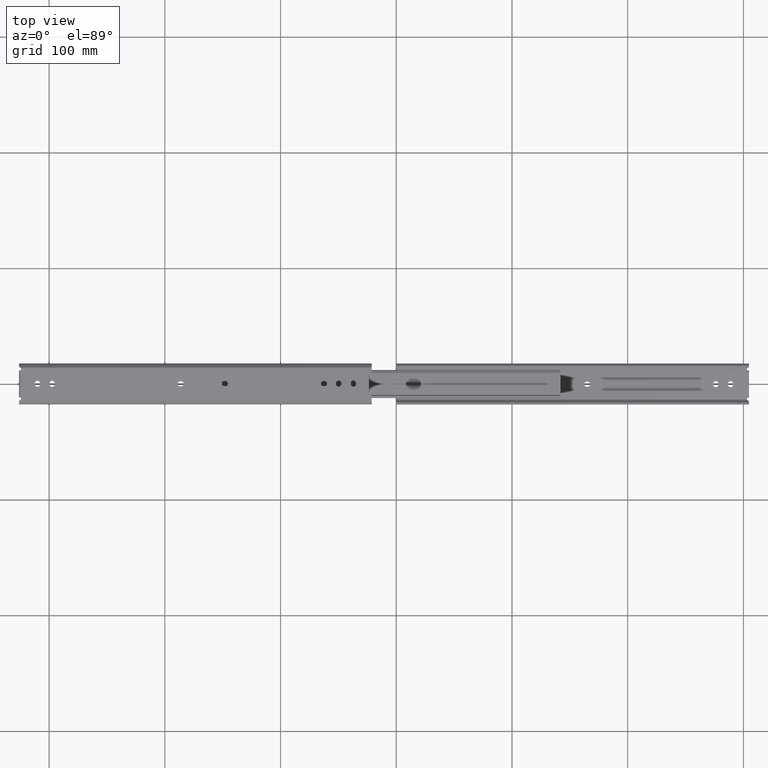
[diagram: clean part render]
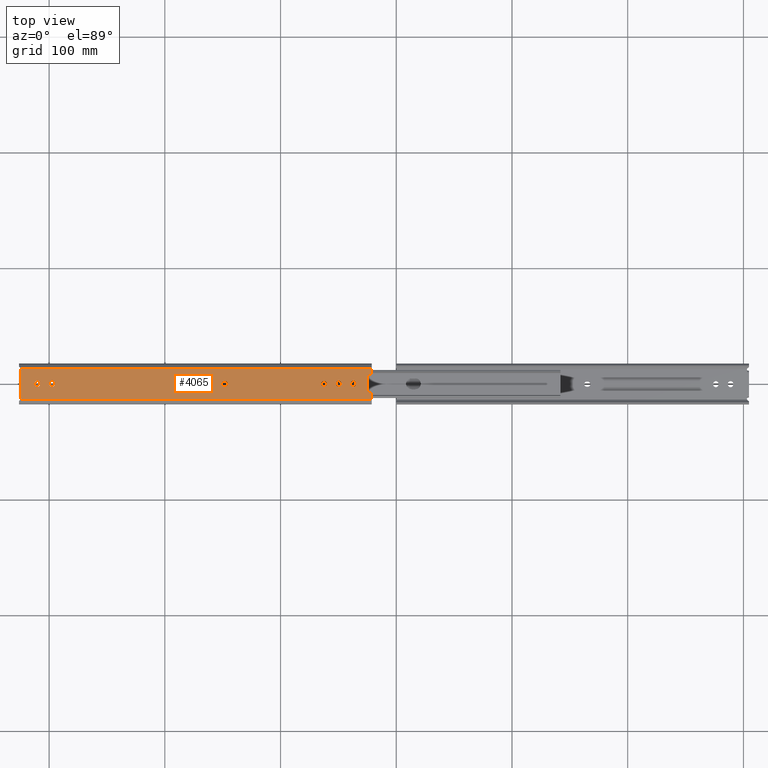
[diagram: same view with one face highlighted and labeled with its STEP entity id]
A machine part, top view. The second image highlights one B-rep face of the part: STEP entity #4065.
In plain terms, the highlighted planar face has unit normal (0, 0, -1).
Its self-contained STEP definition (entity closure, byte-faithful):
#6 = AXIS2_PLACEMENT_3D ( 'NONE', #3156, #1023, #3507 ) ;
#21 = CARTESIAN_POINT ( 'NONE',  ( 40.89999999999999100, -2.250000000000001800, -4.792173602385929600E-014 ) ) ;
#22 = ORIENTED_EDGE ( 'NONE', *, *, #2494, .F. ) ;
#27 = ORIENTED_EDGE ( 'NONE', *, *, #1081, .T. ) ;
#46 = CARTESIAN_POINT ( 'NONE',  ( 304.3000000000008100, -12.79999999999970100, 7.958043946043602500E-014 ) ) ;
#56 = CARTESIAN_POINT ( 'NONE',  ( 278.4500000000000500, 0.4000000000000100100, -4.792173602385929600E-014 ) ) ;
#61 = CARTESIAN_POINT ( 'NONE',  ( 13.64999999999999500, -0.3999999999999964700, -2.397426826350011800E-015 ) ) ;
#71 = AXIS2_PLACEMENT_3D ( 'NONE', #1252, #3738, #1600 ) ;
#81 = DIRECTION ( 'NONE',  ( 0.0000000000000000000, 0.0000000000000000000, 1.000000000000000000 ) ) ;
#85 = ORIENTED_EDGE ( 'NONE', *, *, #3411, .T. ) ;
#104 = DIRECTION ( 'NONE',  ( 1.000000000000000000, 0.0000000000000000000, 0.0000000000000000000 ) ) ;
#125 = CARTESIAN_POINT ( 'NONE',  ( 276.2000000000000500, -0.3999999999999308000, -4.792173602385929600E-014 ) ) ;
#133 = CARTESIAN_POINT ( 'NONE',  ( 13.65000000000000000, 0.3999999999999968000, -4.792173602385929600E-014 ) ) ;
#162 = LINE ( 'NONE', #778, #3824 ) ;
#170 = DIRECTION ( 'NONE',  ( -0.0000000000000000000, 1.000000000000000000, -0.0000000000000000000 ) ) ;
#179 = EDGE_CURVE ( 'NONE', #2502, #4097, #2085, .T. ) ;
#209 = EDGE_CURVE ( 'NONE', #951, #460, #3061, .T. ) ;
#256 = CARTESIAN_POINT ( 'NONE',  ( 303.2000000000000500, -12.10717967697330100, 7.958043946043602500E-014 ) ) ;
#262 = DIRECTION ( 'NONE',  ( 1.000000000000000000, 0.0000000000000000000, 0.0000000000000000000 ) ) ;
#285 = DIRECTION ( 'NONE',  ( 0.0000000000000000000, 0.0000000000000000000, 1.000000000000000000 ) ) ;
#332 = DIRECTION ( 'NONE',  ( 0.0000000000000000000, 0.0000000000000000000, 1.000000000000000000 ) ) ;
#342 = CARTESIAN_POINT ( 'NONE',  ( 291.1500000000000900, 0.4000000000000670800, -4.792173602385929600E-014 ) ) ;
#401 = DIRECTION ( 'NONE',  ( 1.000000000000000000, 0.0000000000000000000, 0.0000000000000000000 ) ) ;
#421 = ORIENTED_EDGE ( 'NONE', *, *, #3420, .T. ) ;
#422 = EDGE_CURVE ( 'NONE', #3955, #4448, #4558, .T. ) ;
#428 = VERTEX_POINT ( 'NONE', #4373 ) ;
#431 = VERTEX_POINT ( 'NONE', #1848 ) ;
#460 = VERTEX_POINT ( 'NONE', #133 ) ;
#463 = CARTESIAN_POINT ( 'NONE',  ( 28.60000000000000100, -0.3999999999999991300, -4.792173602385929600E-014 ) ) ;
#480 = DIRECTION ( 'NONE',  ( 1.000000000000000000, 0.0000000000000000000, 0.0000000000000000000 ) ) ;
#485 = CARTESIAN_POINT ( 'NONE',  ( 0.0000000000000000000, -13.34999999999964600, 8.001412032943022700E-014 ) ) ;
#487 = VECTOR ( 'NONE', #858, 1000.000000000000000 ) ;
#488 = LINE ( 'NONE', #1986, #1316 ) ;
#489 = ORIENTED_EDGE ( 'NONE', *, *, #772, .T. ) ;
#495 = ORIENTED_EDGE ( 'NONE', *, *, #2932, .T. ) ;
#496 = VERTEX_POINT ( 'NONE', #2260 ) ;
#513 = FACE_BOUND ( 'NONE', #2574, .T. ) ;
#529 = EDGE_CURVE ( 'NONE', #2888, #2940, #4117, .T. ) ;
#597 = VECTOR ( 'NONE', #2379, 1000.000000000000000 ) ;
#625 = CARTESIAN_POINT ( 'NONE',  ( 273.9500000000000500, 0.4000000000000634200, -4.792173602385929600E-014 ) ) ;
#629 = CARTESIAN_POINT ( 'NONE',  ( 304.8000000000000100, 0.0000000000000000000, 0.0000000000000000000 ) ) ;
#633 = LINE ( 'NONE', #1126, #2401 ) ;
#666 = CARTESIAN_POINT ( 'NONE',  ( 164.6999999999999600, 2.249999999999973800, -4.792173602385929600E-014 ) ) ;
#670 = AXIS2_PLACEMENT_3D ( 'NONE', #1278, #913, #3042 ) ;
#671 = CARTESIAN_POINT ( 'NONE',  ( 303.1220781010617300, -13.34999999999963900, 7.958043946043602500E-014 ) ) ;
#706 = VERTEX_POINT ( 'NONE', #3524 ) ;
#711 = VERTEX_POINT ( 'NONE', #2794 ) ;
#715 = ORIENTED_EDGE ( 'NONE', *, *, #1831, .T. ) ;
#751 = VERTEX_POINT ( 'NONE', #4578 ) ;
#772 = EDGE_CURVE ( 'NONE', #2039, #3564, #3937, .T. ) ;
#778 = CARTESIAN_POINT ( 'NONE',  ( 13.65000000000000000, 0.3999999999999968000, -4.792173602385929600E-014 ) ) ;
#795 = VECTOR ( 'NONE', #2091, 1000.000000000000000 ) ;
#808 = DIRECTION ( 'NONE',  ( 0.0000000000000000000, 0.0000000000000000000, 1.000000000000000000 ) ) ;
#809 = DIRECTION ( 'NONE',  ( 1.000000000000000000, 0.0000000000000000000, 0.0000000000000000000 ) ) ;
#822 = VERTEX_POINT ( 'NONE', #1395 ) ;
#829 = DIRECTION ( 'NONE',  ( 0.0000000000000000000, -1.000000000000000000, 0.0000000000000000000 ) ) ;
#835 = EDGE_LOOP ( 'NONE', ( #495, #2319, #894, #4300 ) ) ;
#854 = AXIS2_PLACEMENT_3D ( 'NONE', #2188, #81, #2538 ) ;
#858 = DIRECTION ( 'NONE',  ( 0.0000000000000000000, -1.000000000000000000, 0.0000000000000000000 ) ) ;
#869 = VERTEX_POINT ( 'NONE', #4018 ) ;
#884 = CARTESIAN_POINT ( 'NONE',  ( 28.59999999999999800, 0.4000000000000038000, -4.792173602385929600E-014 ) ) ;
#894 = ORIENTED_EDGE ( 'NONE', *, *, #4438, .T. ) ;
#911 = VERTEX_POINT ( 'NONE', #1945 ) ;
#913 = DIRECTION ( 'NONE',  ( 0.0000000000000000000, 0.0000000000000000000, 1.000000000000000000 ) ) ;
#914 = ORIENTED_EDGE ( 'NONE', *, *, #2055, .T. ) ;
#933 = VECTOR ( 'NONE', #942, 1000.000000000000000 ) ;
#939 = CARTESIAN_POINT ( 'NONE',  ( 164.6999999999999600, 2.249999999999973800, -4.792173602385929600E-014 ) ) ;
#942 = DIRECTION ( 'NONE',  ( 0.0000000000000000000, -1.000000000000000000, 0.0000000000000000000 ) ) ;
#943 = DIRECTION ( 'NONE',  ( -1.000000000000000000, -0.0000000000000000000, -0.0000000000000000000 ) ) ;
#951 = VERTEX_POINT ( 'NONE', #2911 ) ;
#955 = DIRECTION ( 'NONE',  ( 0.0000000000000000000, 0.0000000000000000000, 1.000000000000000000 ) ) ;
#976 = CIRCLE ( 'NONE', #4504, 2.249999999999974200 ) ;
#981 = AXIS2_PLACEMENT_3D ( 'NONE', #3644, #2903, #1154 ) ;
#984 = VECTOR ( 'NONE', #3889, 1000.000000000000000 ) ;
#990 = EDGE_CURVE ( 'NONE', #1131, #4157, #1857, .T. ) ;
#999 = ORIENTED_EDGE ( 'NONE', *, *, #529, .T. ) ;
#1016 = CARTESIAN_POINT ( 'NONE',  ( 0.0000000000000000000, 0.0000000000000000000, 0.0000000000000000000 ) ) ;
#1023 = DIRECTION ( 'NONE',  ( 0.0000000000000000000, 0.0000000000000000000, 1.000000000000000000 ) ) ;
#1025 = EDGE_CURVE ( 'NONE', #2502, #751, #1327, .T. ) ;
#1034 = VECTOR ( 'NONE', #2233, 1000.000000000000000 ) ;
#1077 = ORIENTED_EDGE ( 'NONE', *, *, #4342, .T. ) ;
#1081 = EDGE_CURVE ( 'NONE', #4327, #1131, #1215, .T. ) ;
#1089 = CARTESIAN_POINT ( 'NONE',  ( 40.89999999999999100, -2.250000000000001800, -4.792173602385929600E-014 ) ) ;
#1090 = LINE ( 'NONE', #4121, #3819 ) ;
#1111 = DIRECTION ( 'NONE',  ( 0.0000000000000000000, 0.0000000000000000000, 1.000000000000000000 ) ) ;
#1126 = CARTESIAN_POINT ( 'NONE',  ( 3.799999999999999400, 8.000000000000000000, 7.958043946043602500E-014 ) ) ;
#1131 = VERTEX_POINT ( 'NONE', #4069 ) ;
#1147 = CIRCLE ( 'NONE', #4564, 2.250000000000029800 ) ;
#1154 = DIRECTION ( 'NONE',  ( 1.000000000000000000, 0.0000000000000000000, 0.0000000000000000000 ) ) ;
#1164 = VECTOR ( 'NONE', #1274, 1000.000000000000000 ) ;
#1203 = CARTESIAN_POINT ( 'NONE',  ( 278.4500000000000500, -0.3999999999999296300, -4.792173602385929600E-014 ) ) ;
#1208 = CIRCLE ( 'NONE', #2012, 2.250000000000001800 ) ;
#1215 = CIRCLE ( 'NONE', #2090, 2.249999999999998700 ) ;
#1220 = CARTESIAN_POINT ( 'NONE',  ( 18.15000000000000600, 0.3999999999999995800, -4.792173602385929600E-014 ) ) ;
#1244 = LINE ( 'NONE', #939, #1619 ) ;
#1252 = CARTESIAN_POINT ( 'NONE',  ( 276.1999999999999900, 0.4000000000000097400, -4.792173602385929600E-014 ) ) ;
#1270 = VECTOR ( 'NONE', #2907, 1000.000000000000000 ) ;
#1274 = DIRECTION ( 'NONE',  ( -1.000000000000000000, -0.0000000000000000000, -0.0000000000000000000 ) ) ;
#1278 = CARTESIAN_POINT ( 'NONE',  ( 304.3000000000008100, 12.79999999999970100, 7.958043946043602500E-014 ) ) ;
#1299 = DIRECTION ( 'NONE',  ( -1.000000000000000000, -0.0000000000000000000, -0.0000000000000000000 ) ) ;
#1316 = VECTOR ( 'NONE', #4145, 1000.000000000000000 ) ;
#1327 = CIRCLE ( 'NONE', #670, 1.300000000000023400 ) ;
#1334 = VERTEX_POINT ( 'NONE', #4056 ) ;
#1344 = AXIS2_PLACEMENT_3D ( 'NONE', #4527, #2374, #262 ) ;
#1355 = DIRECTION ( 'NONE',  ( 0.0000000000000000000, -1.000000000000000000, -5.993567065875082400E-015 ) ) ;
#1364 = ORIENTED_EDGE ( 'NONE', *, *, #1650, .T. ) ;
#1389 = ORIENTED_EDGE ( 'NONE', *, *, #1559, .T. ) ;
#1395 = CARTESIAN_POINT ( 'NONE',  ( 129.6500000000000100, 1.230082464744604100E-014, -4.792173602385929600E-014 ) ) ;
#1402 = EDGE_CURVE ( 'NONE', #4448, #1334, #4399, .T. ) ;
#1403 = EDGE_CURVE ( 'NONE', #869, #4327, #4501, .T. ) ;
#1407 = ORIENTED_EDGE ( 'NONE', *, *, #3421, .T. ) ;
#1413 = LINE ( 'NONE', #56, #3093 ) ;
#1435 = CARTESIAN_POINT ( 'NONE',  ( 286.6500000000000900, 0.4000000000000085700, -4.792173602385929600E-014 ) ) ;
#1450 = FACE_BOUND ( 'NONE', #4567, .T. ) ;
#1464 = CIRCLE ( 'NONE', #3191, 2.250000000000001800 ) ;
#1478 = ORIENTED_EDGE ( 'NONE', *, *, #990, .T. ) ;
#1487 = ORIENTED_EDGE ( 'NONE', *, *, #2336, .T. ) ;
#1502 = CARTESIAN_POINT ( 'NONE',  ( 0.0000000000000000000, 8.000000000000000000, 7.958043946043602500E-014 ) ) ;
#1509 = EDGE_CURVE ( 'NONE', #460, #3349, #162, .T. ) ;
#1523 = CARTESIAN_POINT ( 'NONE',  ( 41.70000000000000300, 3.337652803933819400E-015, -4.792173602385929600E-014 ) ) ;
#1529 = VECTOR ( 'NONE', #4572, 1000.000000000000000 ) ;
#1542 = ORIENTED_EDGE ( 'NONE', *, *, #2994, .T. ) ;
#1559 = EDGE_CURVE ( 'NONE', #1334, #2039, #3712, .T. ) ;
#1564 = FACE_BOUND ( 'NONE', #4296, .T. ) ;
#1568 = CARTESIAN_POINT ( 'NONE',  ( 286.6500000000000900, 0.4000000000000085700, -4.792173602385929600E-014 ) ) ;
#1578 = VERTEX_POINT ( 'NONE', #2860 ) ;
#1585 = ORIENTED_EDGE ( 'NONE', *, *, #3744, .T. ) ;
#1600 = DIRECTION ( 'NONE',  ( 1.000000000000000000, 0.0000000000000000000, 0.0000000000000000000 ) ) ;
#1601 = CARTESIAN_POINT ( 'NONE',  ( 165.5000000000000300, -2.250000000000025800, -1.348552589821909000E-014 ) ) ;
#1602 = AXIS2_PLACEMENT_3D ( 'NONE', #46, #2503, #401 ) ;
#1613 = DIRECTION ( 'NONE',  ( -1.239088197126290800E-016, 1.000000000000000000, 5.993567065875082400E-015 ) ) ;
#1615 = VERTEX_POINT ( 'NONE', #3963 ) ;
#1618 = VECTOR ( 'NONE', #2458, 1000.000000000000000 ) ;
#1619 = VECTOR ( 'NONE', #1299, 1000.000000000000000 ) ;
#1621 = ORIENTED_EDGE ( 'NONE', *, *, #1403, .T. ) ;
#1649 = VERTEX_POINT ( 'NONE', #1502 ) ;
#1650 = EDGE_CURVE ( 'NONE', #751, #4603, #2190, .T. ) ;
#1705 = CARTESIAN_POINT ( 'NONE',  ( 288.9000000000000300, 0.4000000000000668000, -4.792173602385929600E-014 ) ) ;
#1707 = CARTESIAN_POINT ( 'NONE',  ( 167.7500000000000000, 2.594053039760294200E-014, -4.792173602385929600E-014 ) ) ;
#1708 = VERTEX_POINT ( 'NONE', #2941 ) ;
#1718 = EDGE_CURVE ( 'NONE', #4129, #2262, #1147, .T. ) ;
#1723 = VECTOR ( 'NONE', #4265, 1000.000000000000000 ) ;
#1724 = EDGE_CURVE ( 'NONE', #431, #706, #3872, .T. ) ;
#1774 = CIRCLE ( 'NONE', #1344, 2.250000000000001800 ) ;
#1790 = CARTESIAN_POINT ( 'NONE',  ( 286.6500000000000900, -0.4000000000000084000, -2.397426826350083500E-015 ) ) ;
#1831 = EDGE_CURVE ( 'NONE', #4277, #3210, #1856, .T. ) ;
#1834 = CARTESIAN_POINT ( 'NONE',  ( 30.85000000000000100, 0.4000000000000040700, -4.792173602385929600E-014 ) ) ;
#1844 = VERTEX_POINT ( 'NONE', #1601 ) ;
#1848 = CARTESIAN_POINT ( 'NONE',  ( 3.800000000000001600, -8.000000000000000000, 7.958043946043602500E-014 ) ) ;
#1849 = CARTESIAN_POINT ( 'NONE',  ( 126.5999999999999900, -2.250000000000006700, -4.792173602385929600E-014 ) ) ;
#1856 = LINE ( 'NONE', #4089, #4269 ) ;
#1857 = LINE ( 'NONE', #3076, #933 ) ;
#1867 = DIRECTION ( 'NONE',  ( 1.000000000000000000, 0.0000000000000000000, 0.0000000000000000000 ) ) ;
#1873 = CARTESIAN_POINT ( 'NONE',  ( 3.799999999999999400, 8.000000000000000000, 7.958043946043602500E-014 ) ) ;
#1904 = EDGE_CURVE ( 'NONE', #496, #431, #488, .T. ) ;
#1934 = ORIENTED_EDGE ( 'NONE', *, *, #422, .T. ) ;
#1945 = CARTESIAN_POINT ( 'NONE',  ( 291.1500000000000900, 0.4000000000000670800, -4.792173602385929600E-014 ) ) ;
#1949 = EDGE_CURVE ( 'NONE', #3210, #4336, #1208, .T. ) ;
#1964 = ORIENTED_EDGE ( 'NONE', *, *, #4257, .T. ) ;
#1986 = CARTESIAN_POINT ( 'NONE',  ( 1.708415533803517000E-015, -8.000000000000000000, 7.958043946043602500E-014 ) ) ;
#2008 = DIRECTION ( 'NONE',  ( 0.0000000000000000000, 0.0000000000000000000, 1.000000000000000000 ) ) ;
#2012 = AXIS2_PLACEMENT_3D ( 'NONE', #2436, #332, #2801 ) ;
#2037 = AXIS2_PLACEMENT_3D ( 'NONE', #1523, #4027, #1867 ) ;
#2039 = VERTEX_POINT ( 'NONE', #21 ) ;
#2055 = EDGE_CURVE ( 'NONE', #3564, #3955, #3592, .T. ) ;
#2062 = DIRECTION ( 'NONE',  ( 1.000000000000000000, 0.0000000000000000000, 0.0000000000000000000 ) ) ;
#2085 = LINE ( 'NONE', #2310, #1164 ) ;
#2090 = AXIS2_PLACEMENT_3D ( 'NONE', #884, #2280, #4093 ) ;
#2091 = DIRECTION ( 'NONE',  ( -0.0000000000000000000, 1.000000000000000000, -0.0000000000000000000 ) ) ;
#2101 = EDGE_CURVE ( 'NONE', #711, #1578, #633, .T. ) ;
#2161 = CARTESIAN_POINT ( 'NONE',  ( 18.15000000000000600, -0.3999999999999995800, -4.792173602385929600E-014 ) ) ;
#2188 = CARTESIAN_POINT ( 'NONE',  ( 15.90000000000000000, -0.3999999999999997400, -4.792173602385929600E-014 ) ) ;
#2190 = LINE ( 'NONE', #3632, #1270 ) ;
#2194 = AXIS2_PLACEMENT_3D ( 'NONE', #3085, #955, #3442 ) ;
#2214 = DIRECTION ( 'NONE',  ( 0.0000000000000000000, 0.0000000000000000000, 1.000000000000000000 ) ) ;
#2224 = CIRCLE ( 'NONE', #854, 2.250000000000001800 ) ;
#2233 = DIRECTION ( 'NONE',  ( -1.355252715606880500E-016, 1.000000000000000000, -0.0000000000000000000 ) ) ;
#2260 = CARTESIAN_POINT ( 'NONE',  ( 0.0000000000000000000, -7.999999999999998200, -4.794853652700064100E-014 ) ) ;
#2262 = VERTEX_POINT ( 'NONE', #1203 ) ;
#2275 = CARTESIAN_POINT ( 'NONE',  ( 41.70000000000000300, 2.249999999999998200, -4.792173602385929600E-014 ) ) ;
#2280 = DIRECTION ( 'NONE',  ( 0.0000000000000000000, 0.0000000000000000000, 1.000000000000000000 ) ) ;
#2310 = CARTESIAN_POINT ( 'NONE',  ( 304.8000000000000100, 13.34999999999964600, 8.001412032943022700E-014 ) ) ;
#2319 = ORIENTED_EDGE ( 'NONE', *, *, #3563, .T. ) ;
#2336 = EDGE_CURVE ( 'NONE', #3976, #496, #3315, .T. ) ;
#2348 = CARTESIAN_POINT ( 'NONE',  ( 304.8000000000000100, -13.34999999999964600, 8.001412032943022700E-014 ) ) ;
#2353 = CARTESIAN_POINT ( 'NONE',  ( 0.0000000000000000000, 0.0000000000000000000, 0.0000000000000000000 ) ) ;
#2354 = VERTEX_POINT ( 'NONE', #666 ) ;
#2372 = ORIENTED_EDGE ( 'NONE', *, *, #1904, .T. ) ;
#2374 = DIRECTION ( 'NONE',  ( 0.0000000000000000000, 0.0000000000000000000, 1.000000000000000000 ) ) ;
#2379 = DIRECTION ( 'NONE',  ( -0.0000000000000000000, 1.000000000000000000, -0.0000000000000000000 ) ) ;
#2384 = FACE_BOUND ( 'NONE', #835, .T. ) ;
#2391 = CARTESIAN_POINT ( 'NONE',  ( 164.6999999999999600, 1.577250959088379500E-027, -4.792173602385929600E-014 ) ) ;
#2401 = VECTOR ( 'NONE', #2887, 1000.000000000000000 ) ;
#2436 = CARTESIAN_POINT ( 'NONE',  ( 126.5999999999999900, 1.215386703154835400E-014, -4.792173602385929600E-014 ) ) ;
#2437 = VECTOR ( 'NONE', #4509, 1000.000000000000000 ) ;
#2443 = DIRECTION ( 'NONE',  ( -1.000000000000000000, -0.0000000000000000000, -0.0000000000000000000 ) ) ;
#2458 = DIRECTION ( 'NONE',  ( 1.000000000000000000, 0.0000000000000000000, 0.0000000000000000000 ) ) ;
#2461 = VECTOR ( 'NONE', #3452, 1000.000000000000000 ) ;
#2494 = EDGE_CURVE ( 'NONE', #2926, #4603, #2734, .T. ) ;
#2502 = VERTEX_POINT ( 'NONE', #4316 ) ;
#2503 = DIRECTION ( 'NONE',  ( -0.0000000000000000000, -0.0000000000000000000, -1.000000000000000000 ) ) ;
#2515 = DIRECTION ( 'NONE',  ( -0.0000000000000000000, 1.000000000000000000, -0.0000000000000000000 ) ) ;
#2534 = ORIENTED_EDGE ( 'NONE', *, *, #4442, .T. ) ;
#2538 = DIRECTION ( 'NONE',  ( 1.000000000000000000, 0.0000000000000000000, 0.0000000000000000000 ) ) ;
#2574 = EDGE_LOOP ( 'NONE', ( #2534, #3485, #3445, #3897 ) ) ;
#2583 = DIRECTION ( 'NONE',  ( 0.0000000000000000000, 0.0000000000000000000, 1.000000000000000000 ) ) ;
#2593 = EDGE_LOOP ( 'NONE', ( #2654, #4516, #3481, #3624, #1407, #3761, #3441, #1364, #22, #3059, #1487, #2372 ) ) ;
#2595 = CARTESIAN_POINT ( 'NONE',  ( 165.5000000000000000, 2.594053039760294200E-014, -4.792173602385929600E-014 ) ) ;
#2646 = DIRECTION ( 'NONE',  ( -1.000000000000000000, -0.0000000000000000000, -0.0000000000000000000 ) ) ;
#2654 = ORIENTED_EDGE ( 'NONE', *, *, #1724, .T. ) ;
#2671 = ORIENTED_EDGE ( 'NONE', *, *, #1402, .T. ) ;
#2673 = LINE ( 'NONE', #3918, #1723 ) ;
#2712 = CARTESIAN_POINT ( 'NONE',  ( 273.9500000000000500, 0.4000000000000634200, -4.792173602385929600E-014 ) ) ;
#2719 = CARTESIAN_POINT ( 'NONE',  ( 40.89999999999999100, 2.249999999999998200, -4.792173602385929600E-014 ) ) ;
#2724 = VECTOR ( 'NONE', #943, 1000.000000000000000 ) ;
#2734 = CIRCLE ( 'NONE', #1602, 1.300000000000023400 ) ;
#2747 = DIRECTION ( 'NONE',  ( 1.000000000000000000, 0.0000000000000000000, 0.0000000000000000000 ) ) ;
#2750 = PLANE ( 'NONE',  #4443 ) ;
#2757 = EDGE_CURVE ( 'NONE', #2843, #4129, #3360, .T. ) ;
#2758 = ORIENTED_EDGE ( 'NONE', *, *, #2828, .T. ) ;
#2762 = CARTESIAN_POINT ( 'NONE',  ( 41.70000000000001700, -2.250000000000001800, -1.348552589821894300E-014 ) ) ;
#2775 = LINE ( 'NONE', #342, #795 ) ;
#2794 = CARTESIAN_POINT ( 'NONE',  ( 3.799999999999999400, 7.000000000000000000, 7.958043946043602500E-014 ) ) ;
#2801 = DIRECTION ( 'NONE',  ( 1.000000000000000000, 0.0000000000000000000, 0.0000000000000000000 ) ) ;
#2828 = EDGE_CURVE ( 'NONE', #2354, #428, #1464, .T. ) ;
#2843 = VERTEX_POINT ( 'NONE', #625 ) ;
#2850 = CIRCLE ( 'NONE', #4119, 2.250000000000001800 ) ;
#2860 = CARTESIAN_POINT ( 'NONE',  ( 3.799999999999999400, 8.000000000000000000, 7.958043946043602500E-014 ) ) ;
#2887 = DIRECTION ( 'NONE',  ( -1.355252715606880500E-016, 1.000000000000000000, -0.0000000000000000000 ) ) ;
#2888 = VERTEX_POINT ( 'NONE', #1707 ) ;
#2893 = EDGE_CURVE ( 'NONE', #1844, #2888, #3981, .T. ) ;
#2903 = DIRECTION ( 'NONE',  ( 0.0000000000000000000, 0.0000000000000000000, 1.000000000000000000 ) ) ;
#2907 = DIRECTION ( 'NONE',  ( -0.0000000000000000000, -1.000000000000000000, -5.993567065875082400E-015 ) ) ;
#2911 = CARTESIAN_POINT ( 'NONE',  ( 18.15000000000000600, 0.3999999999999995800, -4.792173602385929600E-014 ) ) ;
#2926 = VERTEX_POINT ( 'NONE', #671 ) ;
#2932 = EDGE_CURVE ( 'NONE', #3250, #911, #2775, .T. ) ;
#2936 = DIRECTION ( 'NONE',  ( 1.000000000000000000, 0.0000000000000000000, 0.0000000000000000000 ) ) ;
#2937 = DIRECTION ( 'NONE',  ( 0.0000000000000000000, 0.0000000000000000000, 1.000000000000000000 ) ) ;
#2940 = VERTEX_POINT ( 'NONE', #3541 ) ;
#2941 = CARTESIAN_POINT ( 'NONE',  ( 278.4500000000000500, 0.4000000000000100100, -4.792173602385929600E-014 ) ) ;
#2994 = EDGE_CURVE ( 'NONE', #428, #1844, #2673, .T. ) ;
#3008 = ORIENTED_EDGE ( 'NONE', *, *, #2757, .T. ) ;
#3042 = DIRECTION ( 'NONE',  ( 1.000000000000000000, 0.0000000000000000000, 0.0000000000000000000 ) ) ;
#3059 = ORIENTED_EDGE ( 'NONE', *, *, #3144, .T. ) ;
#3061 = CIRCLE ( 'NONE', #3343, 2.250000000000001800 ) ;
#3076 = CARTESIAN_POINT ( 'NONE',  ( 26.35000000000000100, 0.3999999999999965800, -4.792173602385929600E-014 ) ) ;
#3085 = CARTESIAN_POINT ( 'NONE',  ( 127.4000000000000200, 1.230082464744604100E-014, -4.792173602385929600E-014 ) ) ;
#3086 = DIRECTION ( 'NONE',  ( 0.0000000000000000000, -1.000000000000000000, 0.0000000000000000000 ) ) ;
#3093 = VECTOR ( 'NONE', #2515, 1000.000000000000000 ) ;
#3144 = EDGE_CURVE ( 'NONE', #2926, #3976, #3689, .T. ) ;
#3146 = EDGE_LOOP ( 'NONE', ( #2671, #1389, #489, #914, #1934 ) ) ;
#3156 = CARTESIAN_POINT ( 'NONE',  ( 165.5000000000000000, 2.594053039760294200E-014, -4.792173602385929600E-014 ) ) ;
#3178 = EDGE_CURVE ( 'NONE', #1615, #822, #1774, .T. ) ;
#3186 = CARTESIAN_POINT ( 'NONE',  ( 126.5999999999999900, -2.250000000000006700, -4.792173602385929600E-014 ) ) ;
#3191 = AXIS2_PLACEMENT_3D ( 'NONE', #2391, #285, #2747 ) ;
#3207 = VECTOR ( 'NONE', #170, 1000.000000000000000 ) ;
#3210 = VERTEX_POINT ( 'NONE', #3818 ) ;
#3240 = CARTESIAN_POINT ( 'NONE',  ( 41.70000000000000300, 3.337652803933819400E-015, -4.792173602385929600E-014 ) ) ;
#3250 = VERTEX_POINT ( 'NONE', #3833 ) ;
#3293 = VERTEX_POINT ( 'NONE', #1435 ) ;
#3302 = CARTESIAN_POINT ( 'NONE',  ( 15.89999999999999700, 0.3999999999999997400, -4.792173602385929600E-014 ) ) ;
#3313 = VERTEX_POINT ( 'NONE', #1790 ) ;
#3315 = LINE ( 'NONE', #1016, #1529 ) ;
#3343 = AXIS2_PLACEMENT_3D ( 'NONE', #3302, #808, #2936 ) ;
#3349 = VERTEX_POINT ( 'NONE', #61 ) ;
#3352 = EDGE_CURVE ( 'NONE', #1708, #2843, #3849, .T. ) ;
#3353 = FACE_BOUND ( 'NONE', #3146, .T. ) ;
#3360 = LINE ( 'NONE', #2712, #4202 ) ;
#3392 = ORIENTED_EDGE ( 'NONE', *, *, #2893, .T. ) ;
#3411 = EDGE_CURVE ( 'NONE', #2940, #2354, #1244, .T. ) ;
#3413 = LINE ( 'NONE', #2353, #2437 ) ;
#3420 = EDGE_CURVE ( 'NONE', #822, #4277, #4371, .T. ) ;
#3421 = EDGE_CURVE ( 'NONE', #1649, #4097, #3413, .T. ) ;
#3435 = LINE ( 'NONE', #1220, #3207 ) ;
#3441 = ORIENTED_EDGE ( 'NONE', *, *, #1025, .T. ) ;
#3442 = DIRECTION ( 'NONE',  ( 1.000000000000000000, 0.0000000000000000000, 0.0000000000000000000 ) ) ;
#3445 = ORIENTED_EDGE ( 'NONE', *, *, #1509, .T. ) ;
#3452 = DIRECTION ( 'NONE',  ( -1.000000000000000000, -0.0000000000000000000, -0.0000000000000000000 ) ) ;
#3455 = AXIS2_PLACEMENT_3D ( 'NONE', #3240, #1111, #3594 ) ;
#3457 = FACE_BOUND ( 'NONE', #3960, .T. ) ;
#3481 = ORIENTED_EDGE ( 'NONE', *, *, #2101, .T. ) ;
#3483 = DIRECTION ( 'NONE',  ( 0.0000000000000000000, -5.993567065875082400E-015, 1.000000000000000000 ) ) ;
#3485 = ORIENTED_EDGE ( 'NONE', *, *, #209, .T. ) ;
#3507 = DIRECTION ( 'NONE',  ( 1.000000000000000000, 0.0000000000000000000, 0.0000000000000000000 ) ) ;
#3524 = CARTESIAN_POINT ( 'NONE',  ( 3.800000000000001600, -6.999999999999999100, 7.958043946043602500E-014 ) ) ;
#3541 = CARTESIAN_POINT ( 'NONE',  ( 165.5000000000000300, 2.249999999999973800, -4.792173602385929600E-014 ) ) ;
#3563 = EDGE_CURVE ( 'NONE', #911, #3293, #3800, .T. ) ;
#3564 = VERTEX_POINT ( 'NONE', #2762 ) ;
#3592 = CIRCLE ( 'NONE', #3455, 2.250000000000001800 ) ;
#3594 = DIRECTION ( 'NONE',  ( 1.000000000000000000, 0.0000000000000000000, 0.0000000000000000000 ) ) ;
#3611 = CARTESIAN_POINT ( 'NONE',  ( 127.4000000000000200, 2.249999999999992900, -4.792173602385929600E-014 ) ) ;
#3624 = ORIENTED_EDGE ( 'NONE', *, *, #3732, .T. ) ;
#3629 = VECTOR ( 'NONE', #2443, 1000.000000000000000 ) ;
#3632 = CARTESIAN_POINT ( 'NONE',  ( 303.2000000000000500, -11.49999999999984700, -6.892602125756252300E-014 ) ) ;
#3640 = AXIS2_PLACEMENT_3D ( 'NONE', #1705, #4223, #2062 ) ;
#3644 = CARTESIAN_POINT ( 'NONE',  ( 40.89999999999999100, 3.239681060002030200E-015, -4.792173602385929600E-014 ) ) ;
#3689 = LINE ( 'NONE', #2348, #2724 ) ;
#3712 = CIRCLE ( 'NONE', #981, 2.250000000000001800 ) ;
#3725 = AXIS2_PLACEMENT_3D ( 'NONE', #2595, #2214, #104 ) ;
#3732 = EDGE_CURVE ( 'NONE', #1578, #1649, #4577, .T. ) ;
#3738 = DIRECTION ( 'NONE',  ( 0.0000000000000000000, 0.0000000000000000000, 1.000000000000000000 ) ) ;
#3744 = EDGE_CURVE ( 'NONE', #4336, #1615, #4473, .T. ) ;
#3761 = ORIENTED_EDGE ( 'NONE', *, *, #179, .F. ) ;
#3800 = CIRCLE ( 'NONE', #3640, 2.249999999999974200 ) ;
#3808 = CARTESIAN_POINT ( 'NONE',  ( 30.85000000000000100, 0.4000000000000040700, -4.792173602385929600E-014 ) ) ;
#3818 = CARTESIAN_POINT ( 'NONE',  ( 126.5999999999999900, 2.249999999999992900, -4.792173602385929600E-014 ) ) ;
#3819 = VECTOR ( 'NONE', #1613, 1000.000000000000000 ) ;
#3824 = VECTOR ( 'NONE', #829, 1000.000000000000000 ) ;
#3833 = CARTESIAN_POINT ( 'NONE',  ( 291.1500000000000900, -0.3999999999999835900, -4.792173602385929600E-014 ) ) ;
#3836 = ORIENTED_EDGE ( 'NONE', *, *, #3178, .T. ) ;
#3849 = CIRCLE ( 'NONE', #71, 2.249999999999974200 ) ;
#3857 = CARTESIAN_POINT ( 'NONE',  ( 0.0000000000000000000, 13.34999999999964600, 8.001412032943022700E-014 ) ) ;
#3872 = LINE ( 'NONE', #1873, #1034 ) ;
#3880 = EDGE_CURVE ( 'NONE', #3349, #4246, #2224, .T. ) ;
#3884 = CARTESIAN_POINT ( 'NONE',  ( 0.0000000000000000000, 8.000000000000000000, 7.958043946043602500E-014 ) ) ;
#3889 = DIRECTION ( 'NONE',  ( 1.000000000000000000, 0.0000000000000000000, 0.0000000000000000000 ) ) ;
#3892 = CARTESIAN_POINT ( 'NONE',  ( 273.9500000000000500, -0.4000000000000624200, -2.397426826350407000E-015 ) ) ;
#3897 = ORIENTED_EDGE ( 'NONE', *, *, #3880, .T. ) ;
#3918 = CARTESIAN_POINT ( 'NONE',  ( 164.6999999999999600, -2.250000000000025800, -4.792173602385929600E-014 ) ) ;
#3937 = LINE ( 'NONE', #1089, #984 ) ;
#3955 = VERTEX_POINT ( 'NONE', #4020 ) ;
#3960 = EDGE_LOOP ( 'NONE', ( #1964, #4212, #3008, #3988 ) ) ;
#3963 = CARTESIAN_POINT ( 'NONE',  ( 127.4000000000000200, -2.250000000000006700, -1.348552589821897700E-014 ) ) ;
#3976 = VERTEX_POINT ( 'NONE', #485 ) ;
#3981 = CIRCLE ( 'NONE', #6, 2.250000000000001800 ) ;
#3985 = ORIENTED_EDGE ( 'NONE', *, *, #1949, .T. ) ;
#3988 = ORIENTED_EDGE ( 'NONE', *, *, #1718, .T. ) ;
#4018 = CARTESIAN_POINT ( 'NONE',  ( 30.85000000000000100, -0.3999999999999980200, -4.792173602385929600E-014 ) ) ;
#4020 = CARTESIAN_POINT ( 'NONE',  ( 43.95000000000000300, 3.337652803933819400E-015, -4.792173602385929600E-014 ) ) ;
#4027 = DIRECTION ( 'NONE',  ( 0.0000000000000000000, 0.0000000000000000000, 1.000000000000000000 ) ) ;
#4056 = CARTESIAN_POINT ( 'NONE',  ( 40.89999999999999100, 2.249999999999998200, -4.792173602385929600E-014 ) ) ;
#4065 = ADVANCED_FACE ( 'NONE', ( #4305, #1564, #3353, #2384, #3457, #1450, #513, #4191 ), #2750, .F. ) ;
#4069 = CARTESIAN_POINT ( 'NONE',  ( 26.35000000000000100, 0.3999999999999965800, -4.792173602385929600E-014 ) ) ;
#4089 = CARTESIAN_POINT ( 'NONE',  ( 126.5999999999999900, 2.249999999999992900, -4.792173602385929600E-014 ) ) ;
#4093 = DIRECTION ( 'NONE',  ( 1.000000000000000000, 0.0000000000000000000, 0.0000000000000000000 ) ) ;
#4097 = VERTEX_POINT ( 'NONE', #3857 ) ;
#4117 = CIRCLE ( 'NONE', #3725, 2.250000000000001800 ) ;
#4119 = AXIS2_PLACEMENT_3D ( 'NONE', #463, #2937, #809 ) ;
#4121 = CARTESIAN_POINT ( 'NONE',  ( 3.799999999999999400, 7.000000000000000000, 4.195496946112557100E-014 ) ) ;
#4129 = VERTEX_POINT ( 'NONE', #3892 ) ;
#4145 = DIRECTION ( 'NONE',  ( 1.000000000000000000, 0.0000000000000000000, 0.0000000000000000000 ) ) ;
#4157 = VERTEX_POINT ( 'NONE', #4271 ) ;
#4167 = CARTESIAN_POINT ( 'NONE',  ( 288.9000000000000300, -0.3999999999999847600, -4.792173602385929600E-014 ) ) ;
#4191 = FACE_OUTER_BOUND ( 'NONE', #2593, .T. ) ;
#4202 = VECTOR ( 'NONE', #3086, 1000.000000000000000 ) ;
#4203 = EDGE_LOOP ( 'NONE', ( #85, #2758, #1542, #3392, #999 ) ) ;
#4212 = ORIENTED_EDGE ( 'NONE', *, *, #3352, .T. ) ;
#4223 = DIRECTION ( 'NONE',  ( 0.0000000000000000000, 0.0000000000000000000, 1.000000000000000000 ) ) ;
#4246 = VERTEX_POINT ( 'NONE', #2161 ) ;
#4257 = EDGE_CURVE ( 'NONE', #2262, #1708, #1413, .T. ) ;
#4265 = DIRECTION ( 'NONE',  ( 1.000000000000000000, 0.0000000000000000000, 0.0000000000000000000 ) ) ;
#4268 = LINE ( 'NONE', #1568, #487 ) ;
#4269 = VECTOR ( 'NONE', #2646, 1000.000000000000000 ) ;
#4271 = CARTESIAN_POINT ( 'NONE',  ( 26.34999999999998400, -0.3999999999999968600, -2.397426826350014100E-015 ) ) ;
#4277 = VERTEX_POINT ( 'NONE', #3611 ) ;
#4296 = EDGE_LOOP ( 'NONE', ( #715, #3985, #1585, #3836, #421 ) ) ;
#4300 = ORIENTED_EDGE ( 'NONE', *, *, #4583, .T. ) ;
#4305 = FACE_BOUND ( 'NONE', #4203, .T. ) ;
#4316 = CARTESIAN_POINT ( 'NONE',  ( 303.1220781010617300, 13.34999999999963900, 7.958043946043602500E-014 ) ) ;
#4327 = VERTEX_POINT ( 'NONE', #1834 ) ;
#4336 = VERTEX_POINT ( 'NONE', #1849 ) ;
#4342 = EDGE_CURVE ( 'NONE', #4157, #869, #2850, .T. ) ;
#4371 = CIRCLE ( 'NONE', #2194, 2.250000000000001800 ) ;
#4373 = CARTESIAN_POINT ( 'NONE',  ( 164.6999999999999600, -2.250000000000025800, -4.792173602385929600E-014 ) ) ;
#4399 = LINE ( 'NONE', #2719, #2461 ) ;
#4438 = EDGE_CURVE ( 'NONE', #3293, #3313, #4268, .T. ) ;
#4442 = EDGE_CURVE ( 'NONE', #4246, #951, #3435, .T. ) ;
#4443 = AXIS2_PLACEMENT_3D ( 'NONE', #629, #3483, #1355 ) ;
#4448 = VERTEX_POINT ( 'NONE', #2275 ) ;
#4473 = LINE ( 'NONE', #3186, #1618 ) ;
#4501 = LINE ( 'NONE', #3808, #597 ) ;
#4504 = AXIS2_PLACEMENT_3D ( 'NONE', #4167, #2008, #4522 ) ;
#4509 = DIRECTION ( 'NONE',  ( 0.0000000000000000000, 1.000000000000000000, 5.993567065875081600E-015 ) ) ;
#4516 = ORIENTED_EDGE ( 'NONE', *, *, #4521, .T. ) ;
#4521 = EDGE_CURVE ( 'NONE', #706, #711, #1090, .T. ) ;
#4522 = DIRECTION ( 'NONE',  ( 1.000000000000000000, 0.0000000000000000000, 0.0000000000000000000 ) ) ;
#4527 = CARTESIAN_POINT ( 'NONE',  ( 127.4000000000000200, 1.230082464744604100E-014, -4.792173602385929600E-014 ) ) ;
#4558 = CIRCLE ( 'NONE', #2037, 2.250000000000001800 ) ;
#4564 = AXIS2_PLACEMENT_3D ( 'NONE', #125, #2583, #480 ) ;
#4567 = EDGE_LOOP ( 'NONE', ( #1621, #27, #1478, #1077 ) ) ;
#4572 = DIRECTION ( 'NONE',  ( 0.0000000000000000000, 1.000000000000000000, 5.993567065875081600E-015 ) ) ;
#4577 = LINE ( 'NONE', #3884, #3629 ) ;
#4578 = CARTESIAN_POINT ( 'NONE',  ( 303.2000000000000500, 12.10717967697330100, 7.958043946043602500E-014 ) ) ;
#4583 = EDGE_CURVE ( 'NONE', #3313, #3250, #976, .T. ) ;
#4603 = VERTEX_POINT ( 'NONE', #256 ) ;